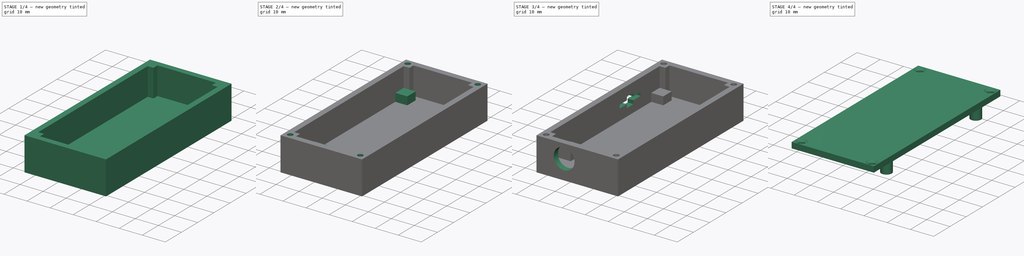
[diagram: build sequence overview — one tinted view per stage of 4, left to right]
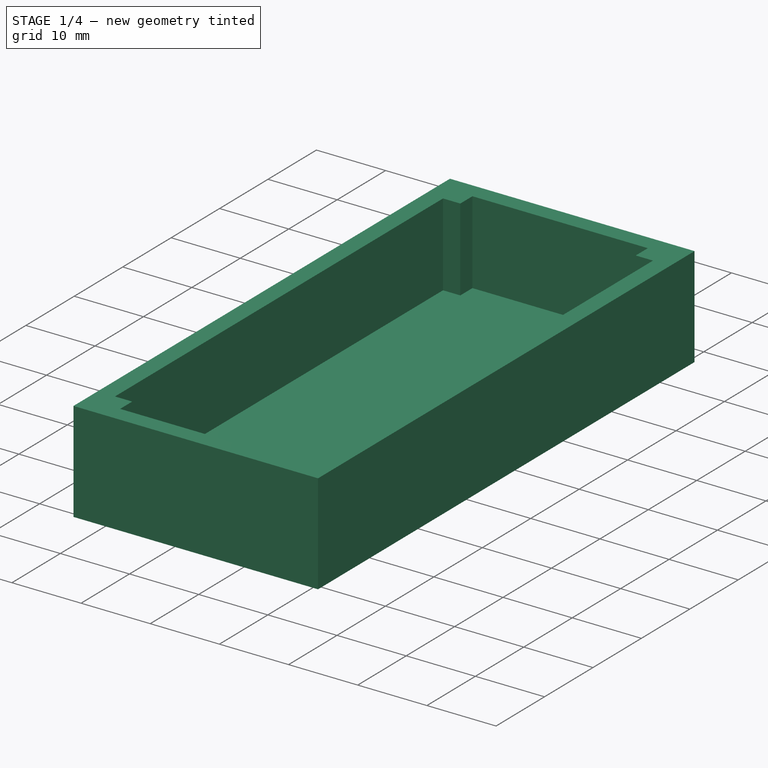
[diagram: stage 1 of 4 — iso view after this stage's code; geometry added in this stage tinted green]
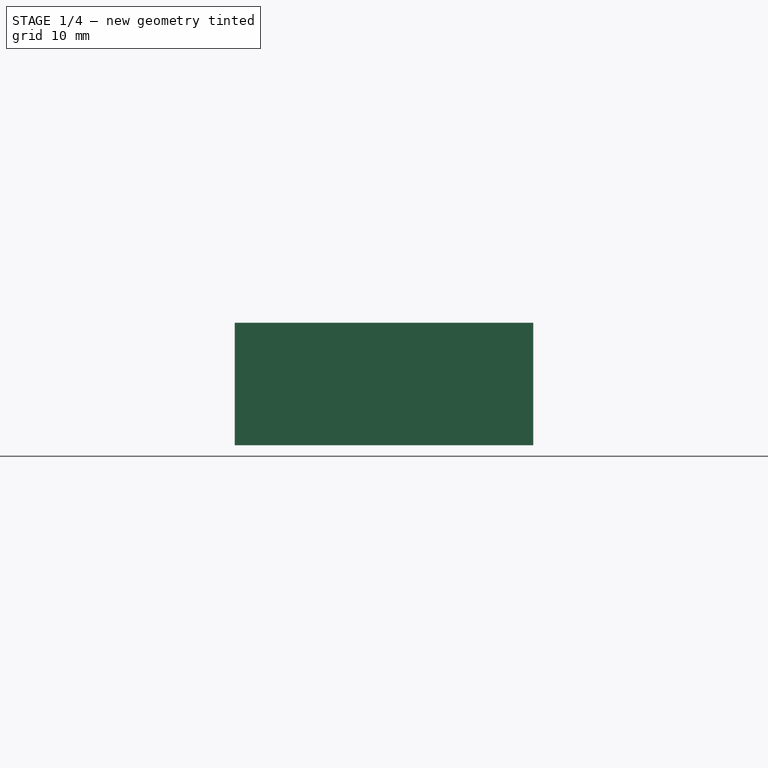
[diagram: stage 1 of 4 — front view after this stage's code; geometry added in this stage tinted green]
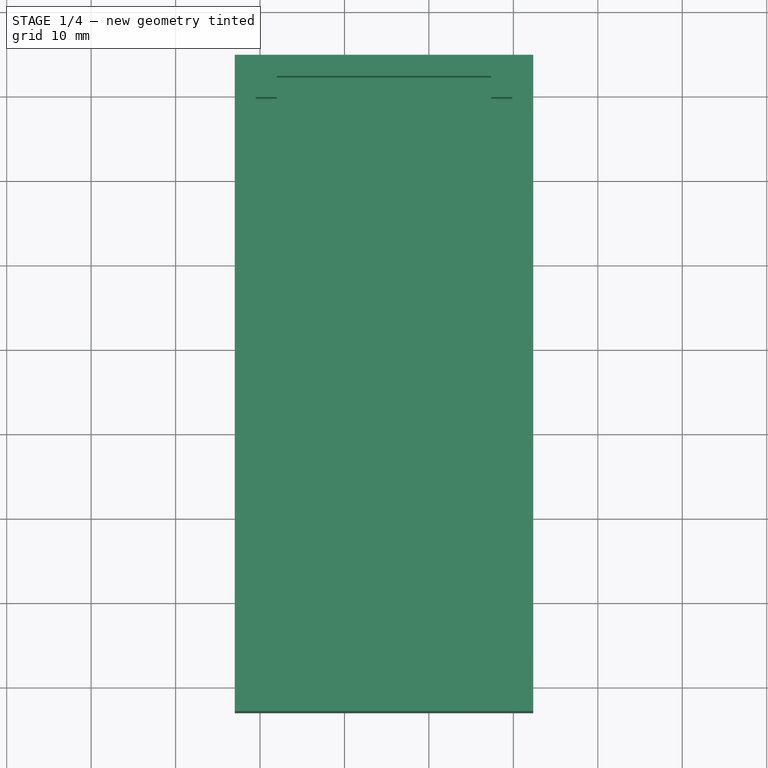
[diagram: stage 1 of 4 — top view after this stage's code; geometry added in this stage tinted green]
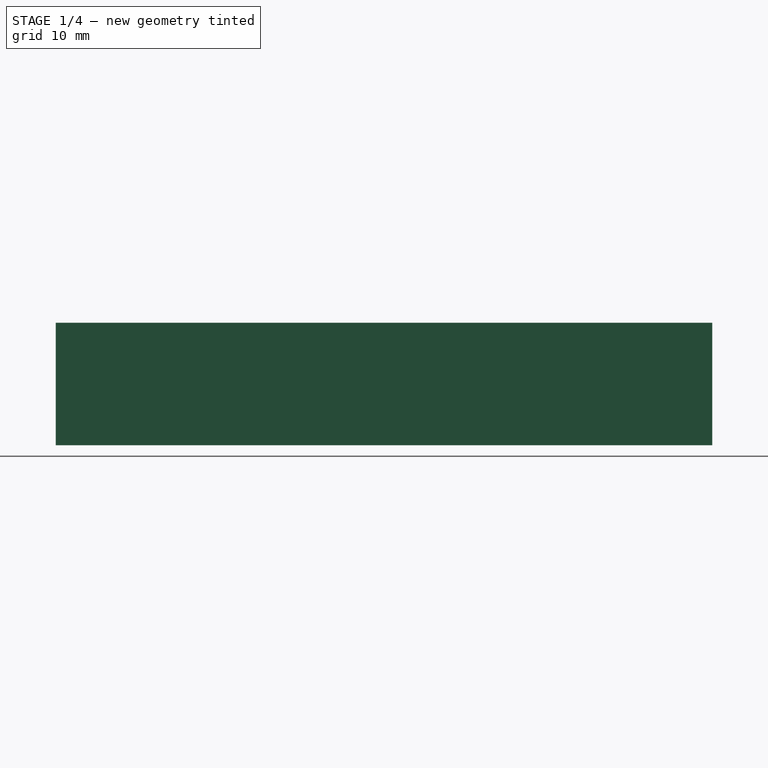
[diagram: stage 1 of 4 — right view after this stage's code; geometry added in this stage tinted green]
FCSTD DOCUMENT  (FreeCAD 0.19R24366 (Git))
Label: RemoteESP32_Enclosure_NoBat
License: All rights reserved
LicenseURL: http://en.wikipedia.org/wiki/All_rights_reserved
objects: PartDesign::Line×16, PartDesign::ShapeBinder×15, Sketcher::SketchObject×12, PartDesign::Plane×7, PartDesign::Pad×6, PartDesign::Pocket×4, PartDesign::Body×2, Part::Feature×1, PartDesign::Hole×1
note: 75 computed .brp shape members not serialized (recipe doc carries the construction recipe); baked Part::Feature solids carry a one-line shape summary decoded from their .brp

FEATURE [Part::Feature] Feature  label="RemoteESP32"
  shape: bbox 31.07 x 61.15 x 16.5 mm, 3429 faces, 53 solids (baked)
FEATURE [PartDesign::ShapeBinder] CopyFeature
  TraceSupport = false
FEATURE [PartDesign::Line] DatumLine  label="PCB Left"
  AttacherType = Attacher::AttachEngineLine
  Length = 20
  MapMode = 29
  Placement = pos=(29.3624,0,0) rot=(1,0,0;1.5708rad)
  ResizeMode = 0
  Support = -> [CopyFeature]
FEATURE [PartDesign::ShapeBinder] CopyFeature001
  TraceSupport = false
FEATURE [PartDesign::Line] DatumLine001  label="PCB Top"
  AttacherType = Attacher::AttachEngineLine
  Length = 20
  MapMode = 29
  Placement = pos=(0,59.2328,0) rot=(0.57735,0.57735,0.57735;2.0944rad)
  ResizeMode = 0
  Support = -> [CopyFeature001]
FEATURE [PartDesign::ShapeBinder] CopyFeature002
  TraceSupport = false
FEATURE [PartDesign::Line] DatumLine002  label="PCB Right"
  AttacherType = Attacher::AttachEngineLine
  Length = 20
  MapMode = 29
  Placement = pos=(0,0,0) rot=(0,0.707107,0.707107;3.14159rad)
  ResizeMode = 0
  Support = -> [CopyFeature002]
FEATURE [PartDesign::ShapeBinder] CopyFeature003
  TraceSupport = false
FEATURE [PartDesign::Line] DatumLine003  label="PCB Btm"
  AttacherType = Attacher::AttachEngineLine
  Length = 20
  MapMode = 29
  Placement = pos=(0,0,0) rot=(0.57735,-0.57735,-0.57735;2.0944rad)
  ResizeMode = 0
  Support = -> [CopyFeature003]
FEATURE [Sketcher::SketchObject] Sketch001  label="ScrewPillarsRef"
  ExternalGeometry = -> [DatumLine001,DatumLine,DatumLine002,DatumLine003]
  FullyConstrained = true
  MapMode = 5
  Support = -> [XY_Plane]
  sketch-geometry (16):
    g0: LineSegment StartX=-3 StartY=64.7328 StartZ=0 EndX=2 EndY=64.7328 EndZ=0
    g1: LineSegment StartX=2 StartY=64.7328 StartZ=0 EndX=2 EndY=59.7328 EndZ=0
    g2: LineSegment StartX=2 StartY=59.7328 StartZ=0 EndX=-3 EndY=59.7328 EndZ=0
    g3: LineSegment StartX=-3 StartY=59.7328 StartZ=0 EndX=-3 EndY=64.7328 EndZ=0
    g4: LineSegment StartX=27.3624 StartY=64.7328 StartZ=0 EndX=32.3624 EndY=64.7328 EndZ=0
    g5: LineSegment StartX=32.3624 StartY=64.7328 StartZ=0 EndX=32.3624 EndY=59.7328 EndZ=0
    g6: LineSegment StartX=32.3624 StartY=59.7328 StartZ=0 EndX=27.3624 EndY=59.7328 EndZ=0
    g7: LineSegment StartX=27.3624 StartY=59.7328 StartZ=0 EndX=27.3624 EndY=64.7328 EndZ=0
    g8: LineSegment StartX=2 StartY=-8 StartZ=0 EndX=-3 EndY=-8 EndZ=0
    g9: LineSegment StartX=-3 StartY=-8 StartZ=0 EndX=-3 EndY=-13 EndZ=0
    g10: LineSegment StartX=-3 StartY=-13 StartZ=0 EndX=2 EndY=-13 EndZ=0
    g11: LineSegment StartX=2 StartY=-13 StartZ=0 EndX=2 EndY=-8 EndZ=0
    g12: LineSegment StartX=27.3624 StartY=-8 StartZ=0 EndX=32.3624 EndY=-8 EndZ=0
    g13: LineSegment StartX=32.3624 StartY=-8 StartZ=0 EndX=32.3624 EndY=-13 EndZ=0
    g14: LineSegment StartX=32.3624 StartY=-13 StartZ=0 EndX=27.3624 EndY=-13 EndZ=0
    g15: LineSegment StartX=27.3624 StartY=-13 StartZ=0 EndX=27.3624 EndY=-8 EndZ=0
  constraints (48):
    c: Coincident(g0,g1)
    c: Coincident(g1,g2)
    c: Coincident(g2,g3)
    c: Coincident(g3,g0)
    c: Horizontal(g0)
    c: Horizontal(g2)
    c: Vertical(g1)
    c: Vertical(g3)
    c: Distance(g2,g-5) = 3
    c: DistanceY(g2,g0) = 5
    c: DistanceX(g0,g0) = 5
    c: Coincident(g4,g5)
    c: Coincident(g5,g6)
    c: Coincident(g6,g7)
    c: Coincident(g7,g4)
    c: Horizontal(g4)
    c: Horizontal(g6)
    c: Vertical(g5)
    c: Vertical(g7)
    c: Coincident(g8,g9)
    c: Coincident(g9,g10)
    c: Coincident(g10,g11)
    c: Coincident(g11,g8)
    c: Horizontal(g8)
    c: Horizontal(g10)
    c: Vertical(g9)
    c: Vertical(g11)
    c: Coincident(g12,g13)
    c: Coincident(g13,g14)
    c: Coincident(g14,g15)
    c: Coincident(g15,g12)
    c: Horizontal(g12)
    c: Horizontal(g14)
    c: Vertical(g13)
    c: Vertical(g15)
    c: Distance(g5,g-4) = 3
    c: Distance(g12,g-4) = 3
    c: Distance(g8,g-5) = 3
    c: DistanceY(g9,g8) = 5
    c: DistanceY(g13,g12) = 5
    c: DistanceY(g5,g4) = 5
    c: DistanceX(g4,g4) = 5
    c: DistanceX(g14,g13) = 5
    c: DistanceX(g9,g10) = 5
    c: Distance(g8,g-6) = 8
    c: Distance(g12,g-6) = 8
    c: Distance(g5,g-3) = 0.5
    c: Distance(g2,g-3) = 0.5
FEATURE [Sketcher::SketchObject] Sketch  label="Outline"
  ExternalGeometry = -> [Sketch001]
  FullyConstrained = true
  MapMode = 5
  Support = -> [XY_Plane]
  sketch-geometry (4):
    g0: LineSegment StartX=-3 StartY=64.7328 StartZ=0 EndX=32.3624 EndY=64.7328 EndZ=0
    g1: LineSegment StartX=32.3624 StartY=64.7328 StartZ=0 EndX=32.3624 EndY=-13 EndZ=0
    g2: LineSegment StartX=32.3624 StartY=-13 StartZ=0 EndX=-3 EndY=-13 EndZ=0
    g3: LineSegment StartX=-3 StartY=-13 StartZ=0 EndX=-3 EndY=64.7328 EndZ=0
  constraints (10):
    c: Coincident(g0,g1)
    c: Coincident(g1,g2)
    c: Coincident(g2,g3)
    c: Coincident(g3,g0)
    c: Horizontal(g0)
    c: Horizontal(g2)
    c: Vertical(g1)
    c: Vertical(g3)
    c: Coincident(g0,g-3)
    c: Coincident(g1,g-6)
FEATURE [PartDesign::Pad] Pad
  Direction = (1,1,1)
  Length = 8.5
  Length2 = 6
  Profile = -> Sketch
  Type = 4
FEATURE [Sketcher::SketchObject] Sketch002  label="MainPocket"
  ExternalGeometry = -> [Pad]
  FullyConstrained = true
  MapMode = 5
  Support = -> [XY_Plane]
  sketch-geometry (4):
    g0: LineSegment StartX=-0.5 StartY=62.2328 StartZ=0 EndX=29.8624 EndY=62.2328 EndZ=0
    g1: LineSegment StartX=29.8624 StartY=62.2328 StartZ=0 EndX=29.8624 EndY=-10.5 EndZ=0
    g2: LineSegment StartX=29.8624 StartY=-10.5 StartZ=0 EndX=-0.5 EndY=-10.5 EndZ=0
    g3: LineSegment StartX=-0.5 StartY=-10.5 StartZ=0 EndX=-0.5 EndY=62.2328 EndZ=0
  constraints (12):
    c: Coincident(g0,g1)
    c: Coincident(g1,g2)
    c: Coincident(g2,g3)
    c: Coincident(g3,g0)
    c: Horizontal(g0)
    c: Horizontal(g2)
    c: Vertical(g1)
    c: Vertical(g3)
    c: Distance(g0,g-3) = 2.5
    c: Distance(g0,g-5) = 2.5
    c: Distance(g1,g-4) = 2.5
    c: Distance(g1,g-6) = 2.5
FEATURE [PartDesign::Pocket] Pocket
  BaseFeature = -> Pad
  Length = 3.5
  Length2 = 8.5
  Profile = -> Sketch002
  Type = 4
FEATURE [Sketcher::SketchObject] Sketch003  label="ScrewPillarsPad"
  ExternalGeometry = -> [Sketch001]
  FullyConstrained = true
  MapMode = 5
  Support = -> [XY_Plane]
  sketch-geometry (16):
    g0: LineSegment StartX=27.3624 StartY=-8 StartZ=0 EndX=32.3624 EndY=-8 EndZ=0
    g1: LineSegment StartX=32.3624 StartY=-8 StartZ=0 EndX=32.3624 EndY=-13 EndZ=0
    g2: LineSegment StartX=32.3624 StartY=-13 StartZ=0 EndX=27.3624 EndY=-13 EndZ=0
    g3: LineSegment StartX=27.3624 StartY=-13 StartZ=0 EndX=27.3624 EndY=-8 EndZ=0
    g4: LineSegment StartX=-3 StartY=-8 StartZ=0 EndX=2 EndY=-8 EndZ=0
    g5: LineSegment StartX=2 StartY=-8 StartZ=0 EndX=2 EndY=-13 EndZ=0
    g6: LineSegment StartX=2 StartY=-13 StartZ=0 EndX=-3 EndY=-13 EndZ=0
    g7: LineSegment StartX=-3 StartY=-13 StartZ=0 EndX=-3 EndY=-8 EndZ=0
    g8: LineSegment StartX=-3 StartY=64.7328 StartZ=0 EndX=2 EndY=64.7328 EndZ=0
    g9: LineSegment StartX=2 StartY=64.7328 StartZ=0 EndX=2 EndY=59.7328 EndZ=0
    g10: LineSegment StartX=2 StartY=59.7328 StartZ=0 EndX=-3 EndY=59.7328 EndZ=0
    g11: LineSegment StartX=-3 StartY=59.7328 StartZ=0 EndX=-3 EndY=64.7328 EndZ=0
    g12: LineSegment StartX=27.3624 StartY=64.7328 StartZ=0 EndX=32.3624 EndY=64.7328 EndZ=0
    g13: LineSegment StartX=32.3624 StartY=64.7328 StartZ=0 EndX=32.3624 EndY=59.7328 EndZ=0
    g14: LineSegment StartX=32.3624 StartY=59.7328 StartZ=0 EndX=27.3624 EndY=59.7328 EndZ=0
    g15: LineSegment StartX=27.3624 StartY=59.7328 StartZ=0 EndX=27.3624 EndY=64.7328 EndZ=0
  constraints (40):
    c: Coincident(g0,g1)
    c: Coincident(g1,g2)
    c: Coincident(g2,g3)
    c: Coincident(g3,g0)
    c: Horizontal(g0)
    c: Horizontal(g2)
    c: Vertical(g1)
    c: Vertical(g3)
    c: Coincident(g0,g-9)
    c: Coincident(g1,g-10)
    c: Coincident(g4,g5)
    c: Coincident(g5,g6)
    c: Coincident(g6,g7)
    c: Coincident(g7,g4)
    c: Horizontal(g4)
    c: Horizontal(g6)
    c: Vertical(g5)
    c: Vertical(g7)
    c: Coincident(g4,g-7)
    c: Coincident(g5,g-8)
    c: Coincident(g8,g9)
    c: Coincident(g9,g10)
    c: Coincident(g10,g11)
    c: Coincident(g11,g8)
    c: Horizontal(g8)
    c: Horizontal(g10)
    c: Vertical(g9)
    c: Vertical(g11)
    c: Coincident(g8,g-3)
    c: Coincident(g9,g-4)
    c: Coincident(g12,g13)
    c: Coincident(g13,g14)
    c: Coincident(g14,g15)
    c: Coincident(g15,g12)
    c: Horizontal(g12)
    c: Horizontal(g14)
    c: Vertical(g13)
    c: Vertical(g15)
    c: Coincident(g12,g-5)
    c: Coincident(g13,g-6)
FEATURE [PartDesign::Pad] Pad001
  BaseFeature = -> Pocket
  Direction = (1,1,1)
  Length = 8.5
  Length2 = 3.5
  Profile = -> Sketch003
  Type = 4
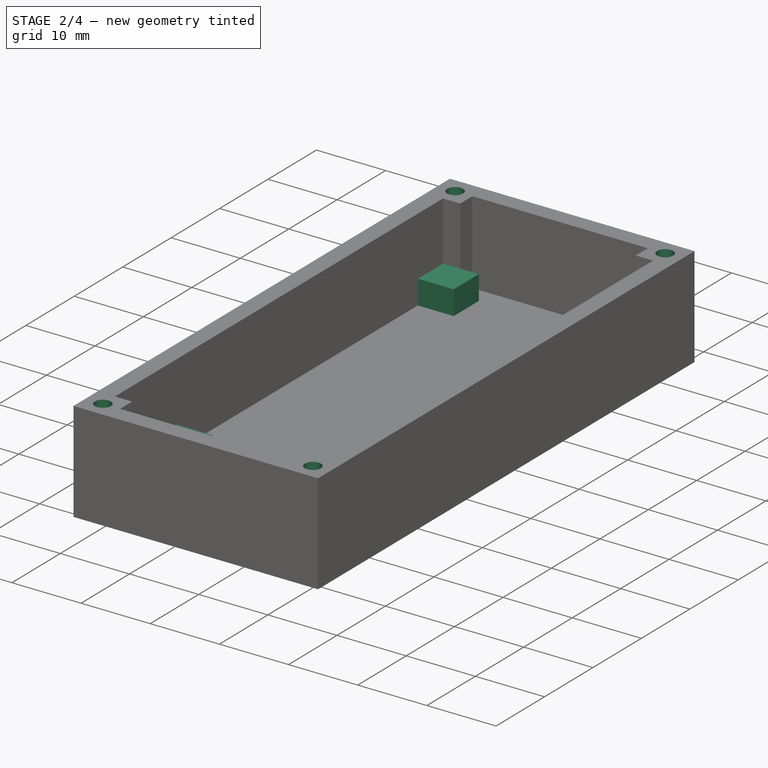
[diagram: stage 2 of 4 — iso view after this stage's code; geometry added in this stage tinted green]
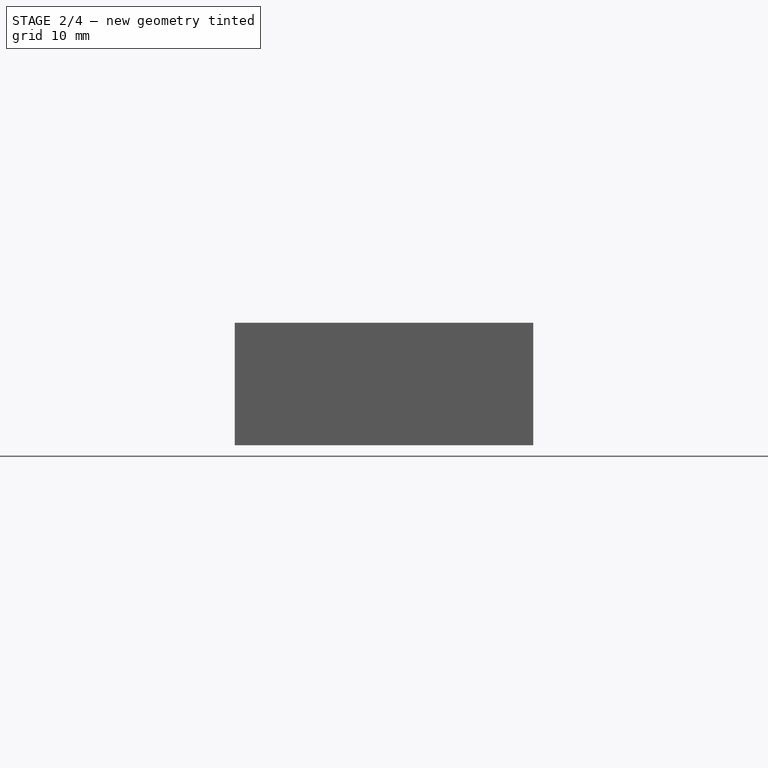
[diagram: stage 2 of 4 — front view after this stage's code; geometry added in this stage tinted green]
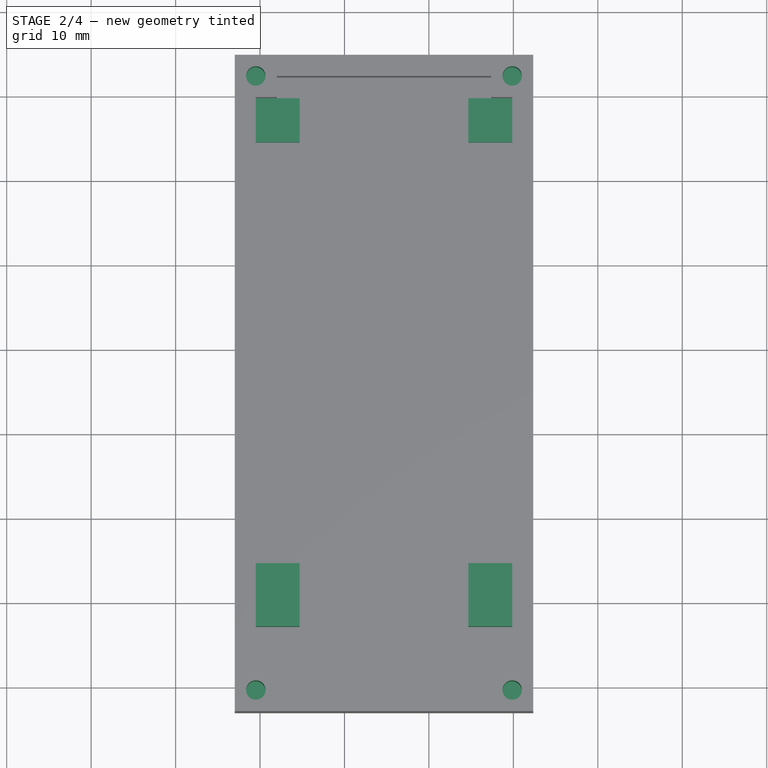
[diagram: stage 2 of 4 — top view after this stage's code; geometry added in this stage tinted green]
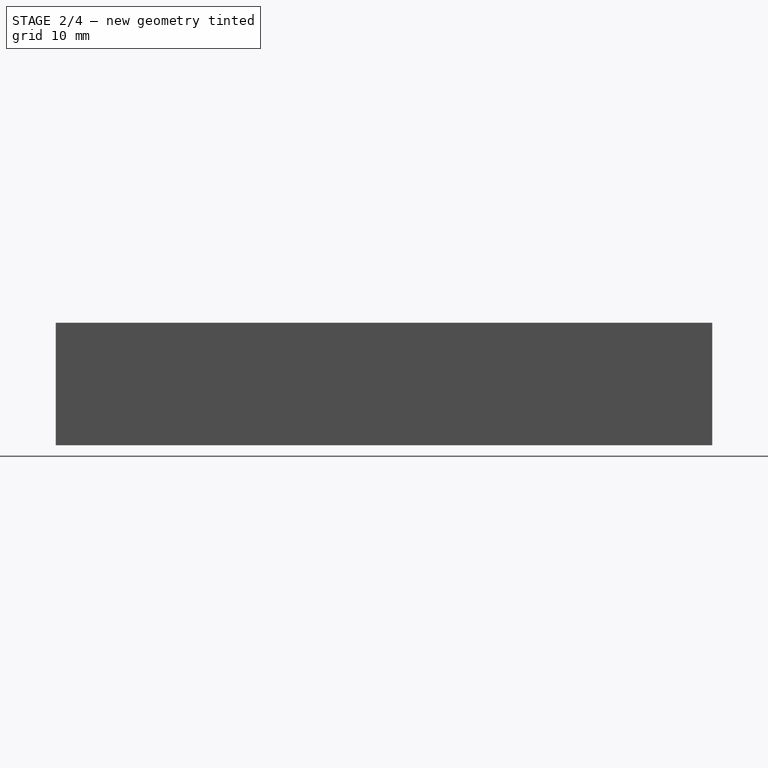
[diagram: stage 2 of 4 — right view after this stage's code; geometry added in this stage tinted green]
FEATURE [PartDesign::ShapeBinder] CopyFeature004
  TraceSupport = false
FEATURE [PartDesign::Line] DatumLine004  label="PCB_HoleTL"
  AttacherType = Attacher::AttachEngineLine
  Length = 20
  MapMode = 19
  Placement = pos=(2.1844,57.038,1.6) rot=(0,0,1;0rad)
  ResizeMode = 0
  Support = -> [CopyFeature004]
FEATURE [PartDesign::ShapeBinder] CopyFeature005
  TraceSupport = false
FEATURE [PartDesign::Line] DatumLine005  label="PCB_HoleTR"
  AttacherType = Attacher::AttachEngineLine
  Length = 20
  MapMode = 19
  Placement = pos=(27.178,57.038,1.6) rot=(0,0,1;0rad)
  ResizeMode = 0
  Support = -> [CopyFeature005]
FEATURE [PartDesign::ShapeBinder] CopyFeature006
  TraceSupport = false
FEATURE [PartDesign::Line] DatumLine006  label="PCB_HoleBL"
  AttacherType = Attacher::AttachEngineLine
  Length = 20
  MapMode = 19
  Placement = pos=(2.1844,2.174,1.6) rot=(0,0,1;0rad)
  ResizeMode = 0
  Support = -> [CopyFeature006]
FEATURE [PartDesign::ShapeBinder] CopyFeature007
  TraceSupport = false
FEATURE [PartDesign::Line] DatumLine007  label="PCB_HoleBR"
  AttacherType = Attacher::AttachEngineLine
  Length = 20
  MapMode = 19
  Placement = pos=(27.178,2.174,1.6) rot=(0,0,1;0rad)
  ResizeMode = 0
  Support = -> [CopyFeature007]
FEATURE [Sketcher::SketchObject] Sketch004  label="PCB_Supports"
  ExternalGeometry = -> [Pad001,DatumLine007,DatumLine006,DatumLine005,DatumLine004]
  FullyConstrained = true
  MapMode = 5
  Support = -> [XY_Plane]
  sketch-geometry (16):
    g0: LineSegment StartX=-0.5 StartY=59.7328 StartZ=0 EndX=4.6844 EndY=59.7328 EndZ=0
    g1: LineSegment StartX=4.6844 StartY=59.7328 StartZ=0 EndX=4.6844 EndY=54.538 EndZ=0
    g2: LineSegment StartX=4.6844 StartY=54.538 StartZ=0 EndX=-0.5 EndY=54.538 EndZ=0
    g3: LineSegment StartX=-0.5 StartY=54.538 StartZ=0 EndX=-0.5 EndY=59.7328 EndZ=0
    g4: LineSegment StartX=29.8624 StartY=59.7328 StartZ=0 EndX=24.678 EndY=59.7328 EndZ=0
    g5: LineSegment StartX=24.678 StartY=59.7328 StartZ=0 EndX=24.678 EndY=54.538 EndZ=0
    g6: LineSegment StartX=24.678 StartY=54.538 StartZ=0 EndX=29.8624 EndY=54.538 EndZ=0
    g7: LineSegment StartX=29.8624 StartY=54.538 StartZ=0 EndX=29.8624 EndY=59.7328 EndZ=0
    g8: LineSegment StartX=-0.5 StartY=-0.326 StartZ=0 EndX=4.6844 EndY=-0.326 EndZ=0
    g9: LineSegment StartX=4.6844 StartY=-0.326 StartZ=0 EndX=4.6844 EndY=4.674 EndZ=0
    g10: LineSegment StartX=4.6844 StartY=4.674 StartZ=0 EndX=-0.5 EndY=4.674 EndZ=0
    g11: LineSegment StartX=-0.5 StartY=4.674 StartZ=0 EndX=-0.5 EndY=-0.326 EndZ=0
    g12: LineSegment StartX=24.678 StartY=-0.326 StartZ=0 EndX=29.8624 EndY=-0.326 EndZ=0
    g13: LineSegment StartX=29.8624 StartY=-0.326 StartZ=0 EndX=29.8624 EndY=4.674 EndZ=0
    g14: LineSegment StartX=29.8624 StartY=4.674 StartZ=0 EndX=24.678 EndY=4.674 EndZ=0
    g15: LineSegment StartX=24.678 StartY=4.674 StartZ=0 EndX=24.678 EndY=-0.326 EndZ=0
  constraints (46):
    c: Coincident(g0,g1)
    c: Coincident(g1,g2)
    c: Coincident(g2,g3)
    c: Coincident(g3,g0)
    c: Horizontal(g0)
    c: Horizontal(g2)
    c: Vertical(g1)
    c: Vertical(g3)
    c: Coincident(g0,g-3)
    c: Coincident(g4,g5)
    c: Coincident(g5,g6)
    c: Coincident(g6,g7)
    c: Coincident(g7,g4)
    c: Horizontal(g4)
    c: Horizontal(g6)
    c: Vertical(g5)
    c: Vertical(g7)
    c: Coincident(g4,g-4)
    c: Coincident(g8,g9)
    c: Coincident(g9,g10)
    c: Coincident(g10,g11)
    c: Coincident(g11,g8)
    c: Horizontal(g8)
    c: Horizontal(g10)
    c: Vertical(g9)
    c: Vertical(g11)
    c: Coincident(g12,g13)
    c: Coincident(g13,g14)
    c: Coincident(g14,g15)
    c: Coincident(g15,g12)
    c: Horizontal(g12)
    c: Horizontal(g14)
    c: Vertical(g13)
    c: Vertical(g15)
    c: Distance(g-8,g2) = 2.5
    c: Distance(g-8,g1) = 2.5
    c: Distance(g-7,g6) = 2.5
    c: Distance(g-7,g5) = 2.5
    c: Distance(g-6,g10) = 2.5
    c: Distance(g-6,g9) = 2.5
    c: Distance(g-6,g8) = 2.5
    c: Distance(g-5,g14) = 2.5
    c: Distance(g-5,g15) = 2.5
    c: Distance(g-5,g12) = 2.5
    c: PointOnObject(g13,g-10)
    c: PointOnObject(g10,g-9)
FEATURE [PartDesign::Pad] Pad002
  BaseFeature = -> Pad001
  Direction = (1,1,1)
  Length = 3.5
  Length2 = 100
  Profile = -> Sketch004
  Reversed = true
  Type = 0
FEATURE [Sketcher::SketchObject] Sketch005  label="PCB_Retainers"
  ExternalGeometry = -> [Pad002]
  FullyConstrained = true
  MapMode = 5
  Support = -> [XY_Plane]
  sketch-geometry (8):
    g0: LineSegment StartX=24.678 StartY=-0.326 StartZ=0 EndX=29.8624 EndY=-0.326 EndZ=0
    g1: LineSegment StartX=29.8624 StartY=-0.326 StartZ=0 EndX=29.8624 EndY=-2.826 EndZ=0
    g2: LineSegment StartX=29.8624 StartY=-2.826 StartZ=0 EndX=24.678 EndY=-2.826 EndZ=0
    g3: LineSegment StartX=24.678 StartY=-2.826 StartZ=0 EndX=24.678 EndY=-0.326 EndZ=0
    g4: LineSegment StartX=4.6844 StartY=-0.326 StartZ=0 EndX=-0.5 EndY=-0.326 EndZ=0
    g5: LineSegment StartX=-0.5 StartY=-0.326 StartZ=0 EndX=-0.5 EndY=-2.826 EndZ=0
    g6: LineSegment StartX=-0.5 StartY=-2.826 StartZ=0 EndX=4.6844 EndY=-2.826 EndZ=0
    g7: LineSegment StartX=4.6844 StartY=-2.826 StartZ=0 EndX=4.6844 EndY=-0.326 EndZ=0
  constraints (22):
    c: Coincident(g0,g1)
    c: Coincident(g1,g2)
    c: Coincident(g2,g3)
    c: Coincident(g3,g0)
    c: Horizontal(g0)
    c: Horizontal(g2)
    c: Vertical(g1)
    c: Vertical(g3)
    c: Coincident(g0,g-4)
    c: PointOnObject(g1,g-6)
    c: Coincident(g4,g5)
    c: Coincident(g5,g6)
    c: Coincident(g6,g7)
    c: Coincident(g7,g4)
    c: Horizontal(g4)
    c: Horizontal(g6)
    c: Vertical(g5)
    c: Vertical(g7)
    c: Coincident(g4,g-3)
    c: PointOnObject(g5,g-5)
    c: DistanceY(g6,g4) = 2.5
    c: DistanceY(g2,g0) = 2.5
FEATURE [PartDesign::Pad] Pad003
  BaseFeature = -> Pad002
  Direction = (1,1,1)
  Length = 1.6
  Length2 = 3.5
  Profile = -> Sketch005
  Type = 4
FEATURE [PartDesign::Plane] DatumPlane  label="LidPlane"
  Length = 71.7113
  MapMode = 5
  Placement = pos=(0,0,8.5) rot=(0,0,1;0rad)
  ResizeMode = 0
  Support = -> [Pad003]
  Width = 104.082
FEATURE [Sketcher::SketchObject] Sketch006  label="ScrewHoles"
  ExternalGeometry = -> [Pad003]
  FullyConstrained = true
  MapMode = 5
  Placement = pos=(0,0,8.5) rot=(0,0,1;0rad)
  Support = -> [DatumPlane]
  sketch-geometry (4):
    g0: Circle CenterX=29.8624 CenterY=-10.5 CenterZ=0 NormalX=0 NormalY=0 NormalZ=1 AngleXU=0 Radius=1.15
    g1: Circle CenterX=-0.5 CenterY=-10.5 CenterZ=0 NormalX=0 NormalY=0 NormalZ=1 AngleXU=0 Radius=1.15
    g2: Circle CenterX=29.8624 CenterY=62.2328 CenterZ=0 NormalX=0 NormalY=0 NormalZ=1 AngleXU=0 Radius=1.15
    g3: Circle CenterX=-0.5 CenterY=62.2328 CenterZ=0 NormalX=0 NormalY=0 NormalZ=1 AngleXU=0 Radius=1.15
  constraints (8):
    c: Symmetric(g-3,g-4,g3)
    c: Symmetric(g-5,g-6,g2)
    c: Symmetric(g-7,g-8,g0)
    c: Symmetric(g-10,g-9,g1)
    c: Radius(g1) = 1.15
    c: Radius(g0) = 1.15
    c: Radius(g2) = 1.15
    c: Radius(g3) = 1.15
FEATURE [PartDesign::Pocket] Pocket001
  BaseFeature = -> Pad003
  Length = 8
  Length2 = 100
  Profile = -> Sketch006
  Type = 0
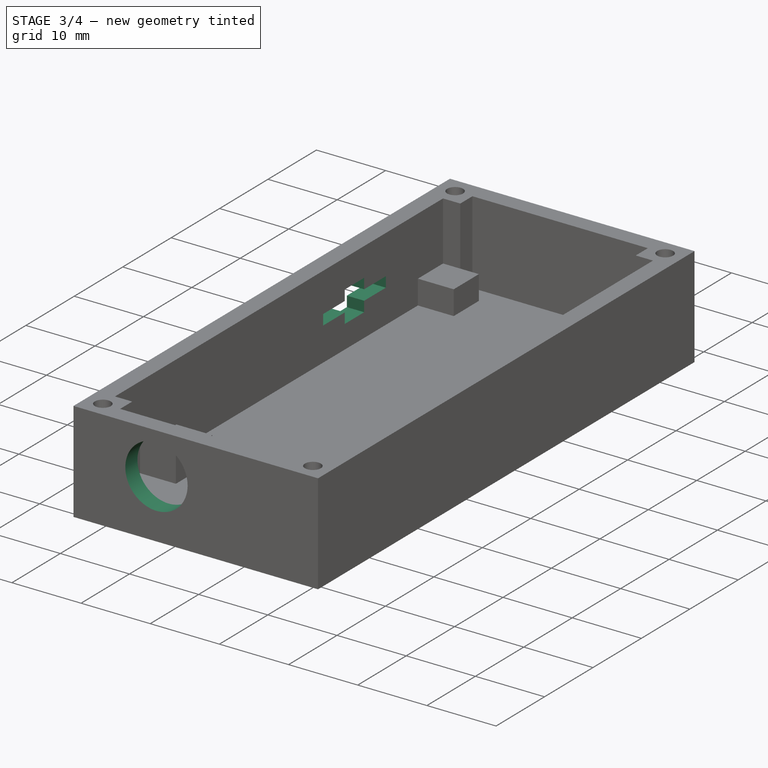
[diagram: stage 3 of 4 — iso view after this stage's code; geometry added in this stage tinted green]
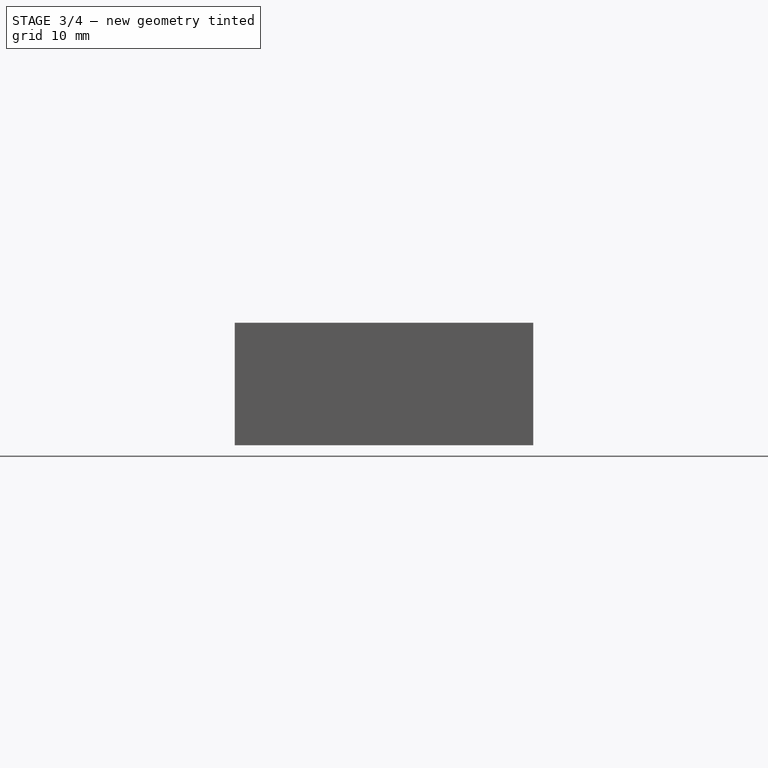
[diagram: stage 3 of 4 — front view after this stage's code; geometry added in this stage tinted green]
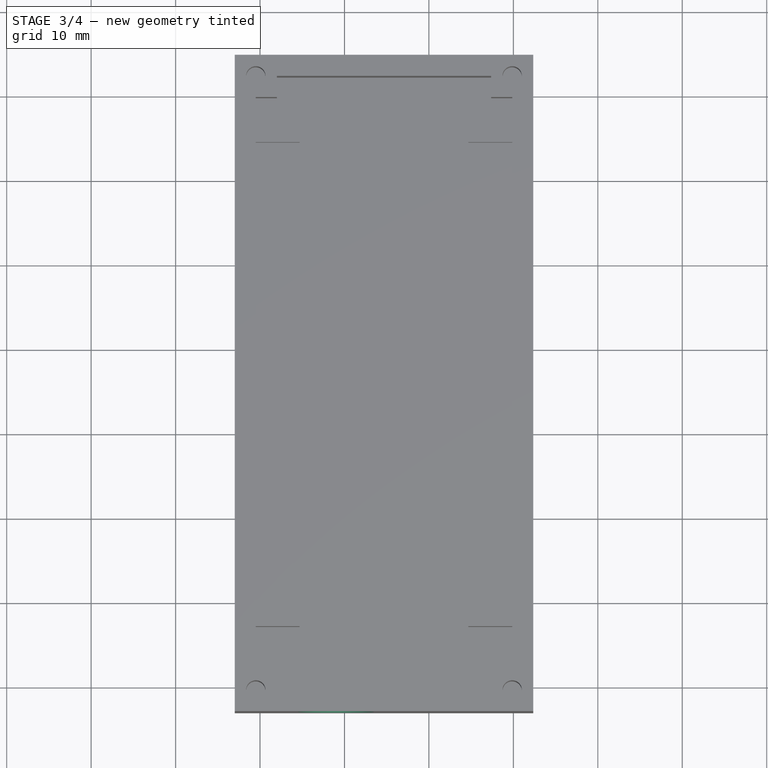
[diagram: stage 3 of 4 — top view after this stage's code; geometry added in this stage tinted green]
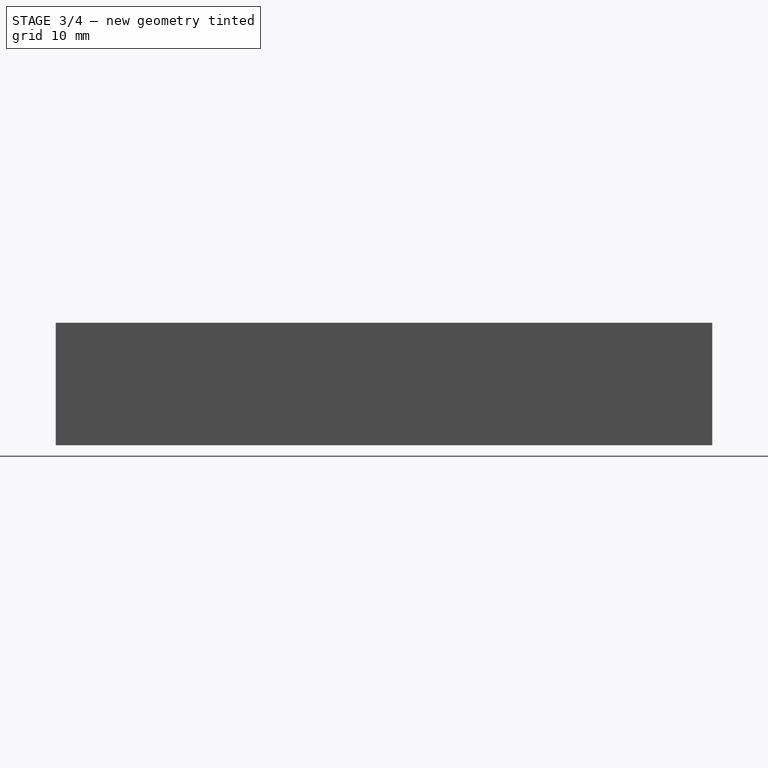
[diagram: stage 3 of 4 — right view after this stage's code; geometry added in this stage tinted green]
FEATURE [PartDesign::Plane] DatumPlane001  label="CableEnd"
  Length = 68.0734
  MapMode = 5
  Placement = pos=(0,-13,0) rot=(1,0,0;1.5708rad)
  ResizeMode = 0
  Support = -> [Pocket001]
  Width = 60.711
FEATURE [Sketcher::SketchObject] Sketch007
  ExternalGeometry = -> [Pocket001]
  FullyConstrained = true
  MapMode = 5
  Placement = pos=(0,-13,0) rot=(1,0,0;1.5708rad)
  Support = -> [DatumPlane001]
  sketch-geometry (2):
    g0: LineSegment StartX=9 StartY=8.5 StartZ=0 EndX=9 EndY=-3.5 EndZ=0
    g1: Circle CenterX=9 CenterY=2.5 CenterZ=0 NormalX=0 NormalY=0 NormalZ=1 AngleXU=0 Radius=4.5
  constraints (6):
    c: Vertical(g0)
    c: Equal(g-3,g0)
    c: PointOnObject(g0,g-4)
    c: Distance(g0,g-3) = 12
    c: Symmetric(g0,g0,g1)
    c: Radius(g1) = 4.5
FEATURE [PartDesign::Pocket] Pocket002
  BaseFeature = -> Pocket001
  Length = 2.5
  Length2 = 100
  Profile = -> Sketch007
  Type = 0
FEATURE [PartDesign::ShapeBinder] CopyFeature008
  Placement = pos=(8.3312,41.4528,1.65) rot=(0,0,-1;1.5708rad)
  TraceSupport = false
FEATURE [PartDesign::Plane] DatumPlane002  label="SD_Edge1"
  Length = 60.9549
  MapMode = 45
  Placement = pos=(7.40243,35.4778,2.30636) rot=(0.575971,0.578039,0.578039;4.18672rad)
  ResizeMode = 0
  Support = -> [CopyFeature008]
  Width = 68.2909
FEATURE [PartDesign::ShapeBinder] CopyFeature009
  Placement = pos=(8.3312,41.4528,1.65) rot=(0,0,-1;1.5708rad)
  TraceSupport = false
FEATURE [PartDesign::Plane] DatumPlane003  label="SD_Edge2"
  Length = 61.3002
  MapMode = 45
  Placement = pos=(6.99152,47.4278,2.42549) rot=(0.574011,0.579013,0.579013;4.18377rad)
  ResizeMode = 0
  Support = -> [CopyFeature009]
  Width = 68.5984
FEATURE [PartDesign::Plane] DatumPlane004  label="Card_Hole"
  Length = 103.129
  MapMode = 5
  Placement = pos=(-3,0,0) rot=(0.57735,-0.57735,-0.57735;2.0944rad)
  ResizeMode = 0
  Support = -> [Pocket002]
  Width = 63.3965
FEATURE [Sketcher::SketchObject] Sketch008
  ExternalGeometry = -> [DatumPlane003,DatumPlane002]
  FullyConstrained = true
  MapMode = 5
  Placement = pos=(-3,0,0) rot=(0.57735,-0.57735,-0.57735;2.0944rad)
  Support = -> [DatumPlane004]
  sketch-geometry (32):
    g0: LineSegment StartX=-47.9278 StartY=2.85 StartZ=0 EndX=-34.9778 EndY=2.85 EndZ=0
    g1: LineSegment StartX=-34.9778 StartY=2.85 StartZ=0 EndX=-34.9778 EndY=1.35 EndZ=0
    g2: LineSegment StartX=-34.9778 StartY=1.35 StartZ=0 EndX=-47.9278 EndY=1.35 EndZ=0
    g3: LineSegment StartX=-47.9278 StartY=1.35 StartZ=0 EndX=-47.9278 EndY=2.85 EndZ=0
    g4: LineSegment StartX=-43.4528 StartY=4.35 StartZ=0 EndX=-41.4528 EndY=4.35 EndZ=0
    g5: LineSegment StartX=-41.4528 StartY=4.35 StartZ=0 EndX=-41.4528 EndY=2.85 EndZ=0
    g6: LineSegment StartX=-41.4528 StartY=2.85 StartZ=0 EndX=-43.4528 EndY=2.85 EndZ=0
    g7: LineSegment StartX=-43.4528 StartY=2.85 StartZ=0 EndX=-43.4528 EndY=4.35 EndZ=0
    g8: LineSegment StartX=-41.4528 StartY=4.35 StartZ=0 EndX=-39.4528 EndY=4.35 EndZ=0
    g9: LineSegment StartX=-39.4528 StartY=4.35 StartZ=0 EndX=-39.4528 EndY=2.85 EndZ=0
    g10: LineSegment StartX=-39.4528 StartY=2.85 StartZ=0 EndX=-41.4528 EndY=2.85 EndZ=0
    g11: LineSegment StartX=-41.4528 StartY=2.85 StartZ=0 EndX=-41.4528 EndY=4.35 EndZ=0
    g12: LineSegment StartX=-41.4528 StartY=1.35 StartZ=0 EndX=-43.4528 EndY=1.35 EndZ=0
    g13: LineSegment StartX=-43.4528 StartY=1.35 StartZ=0 EndX=-43.4528 EndY=-0.15 EndZ=0
    g14: LineSegment StartX=-43.4528 StartY=-0.15 StartZ=0 EndX=-41.4528 EndY=-0.15 EndZ=0
    g15: LineSegment StartX=-41.4528 StartY=-0.15 StartZ=0 EndX=-41.4528 EndY=1.35 EndZ=0
    g16: LineSegment StartX=-41.4528 StartY=1.35 StartZ=0 EndX=-39.4528 EndY=1.35 EndZ=0
    g17: LineSegment StartX=-39.4528 StartY=1.35 StartZ=0 EndX=-39.4528 EndY=-0.15 EndZ=0
    g18: LineSegment StartX=-39.4528 StartY=-0.15 StartZ=0 EndX=-41.4528 EndY=-0.15 EndZ=0
    g19: LineSegment StartX=-41.4528 StartY=-0.15 StartZ=0 EndX=-41.4528 EndY=1.35 EndZ=0
    g20: LineSegment StartX=-47.9278 StartY=2.85 StartZ=0 EndX=-43.4528 EndY=2.85 EndZ=0
    g21: LineSegment StartX=-43.4528 StartY=2.85 StartZ=0 EndX=-43.4528 EndY=4.35 EndZ=0
    g22: LineSegment StartX=-43.4528 StartY=4.35 StartZ=0 EndX=-39.4528 EndY=4.35 EndZ=0
    g23: LineSegment StartX=-39.4528 StartY=4.35 StartZ=0 EndX=-39.4528 EndY=2.85 EndZ=0
    g24: LineSegment StartX=-39.4528 StartY=2.85 StartZ=0 EndX=-34.9778 EndY=2.85 EndZ=0
    g25: LineSegment StartX=-34.9778 StartY=2.85 StartZ=0 EndX=-34.9778 EndY=1.35 EndZ=0
    g26: LineSegment StartX=-34.9778 StartY=1.35 StartZ=0 EndX=-39.4528 EndY=1.35 EndZ=0
    g27: LineSegment StartX=-39.4528 StartY=1.35 StartZ=0 EndX=-39.4528 EndY=-0.15 EndZ=0
    g28: LineSegment StartX=-39.4528 StartY=-0.15 StartZ=0 EndX=-43.4528 EndY=-0.15 EndZ=0
    g29: LineSegment StartX=-43.4528 StartY=-0.15 StartZ=0 EndX=-43.4528 EndY=1.35 EndZ=0
    g30: LineSegment StartX=-43.4528 StartY=1.35 StartZ=0 EndX=-47.9278 EndY=1.35 EndZ=0
    g31: LineSegment StartX=-47.9278 StartY=1.35 StartZ=0 EndX=-47.9278 EndY=2.85 EndZ=0
  constraints (80):
    c: Coincident(g0,g1)
    c: Coincident(g1,g2)
    c: Coincident(g2,g3)
    c: Coincident(g3,g0)
    c: Horizontal(g0)
    c: Horizontal(g2)
    c: Vertical(g1)
    c: Vertical(g3)
    c: Distance(g0,g-3) = 0.5
    c: Distance(g0,g-4) = 0.5
    c: Distance(g2,g-1) = 1.35
    c: DistanceY(g1,g0) = 1.5
    c: Coincident(g4,g5)
    c: Coincident(g5,g6)
    c: Coincident(g6,g7)
    c: Coincident(g7,g4)
    c: Horizontal(g4)
    c: Horizontal(g6)
    c: Vertical(g5)
    c: Vertical(g7)
    c: Coincident(g8,g9)
    c: Coincident(g9,g10)
    c: Coincident(g10,g11)
    c: Coincident(g11,g8)
    c: Horizontal(g8)
    c: Horizontal(g10)
    c: Vertical(g9)
    c: Vertical(g11)
    c: Coincident(g12,g13)
    c: Coincident(g13,g14)
    c: Coincident(g14,g15)
    c: Coincident(g15,g12)
    c: Horizontal(g12)
    c: Horizontal(g14)
    c: Vertical(g13)
    c: Vertical(g15)
    c: Coincident(g16,g17)
    c: Coincident(g17,g18)
    c: Coincident(g18,g19)
    c: Coincident(g19,g16)
    c: Horizontal(g16)
    c: Horizontal(g18)
    c: Vertical(g17)
    c: Vertical(g19)
    c: Symmetric(g0,g0,g5)
    c: Symmetric(g2,g1,g12)
    c: Coincident(g10,g5)
    c: Coincident(g16,g12)
    c: Equal(g7,g9)
    c: Equal(g13,g17)
    c: DistanceY(g9,g8) = 1.5
    c: DistanceY(g17,g16) = 1.5
    c: Distance(g13,g15) = 2
    c: Distance(g17,g15) = 2
    c: Distance(g8,g5) = 2
    c: Distance(g4,g5) = 2
    c: Coincident(g0,g20)
    c: Coincident(g20,g6)
    c: Coincident(g20,g21)
    c: Coincident(g21,g4)
    c: Coincident(g21,g22)
    c: Coincident(g22,g8)
    c: Coincident(g22,g23)
    c: Coincident(g23,g9)
    c: Coincident(g23,g24)
    c: Coincident(g24,g0)
    c: Coincident(g24,g25)
    c: Coincident(g25,g1)
    c: Coincident(g25,g26)
    c: Coincident(g26,g16)
    c: Coincident(g26,g27)
    c: Coincident(g27,g17)
    c: Coincident(g27,g28)
    c: Coincident(g28,g13)
    c: Coincident(g28,g29)
    c: Coincident(g29,g12)
    c: Coincident(g29,g30)
    c: Coincident(g30,g2)
    c: Coincident(g30,g31)
    c: Coincident(g31,g20)
FEATURE [PartDesign::Pocket] Pocket003
  BaseFeature = -> Pocket002
  Length = 2.5
  Length2 = 100
  Profile = -> Sketch008
  Type = 0
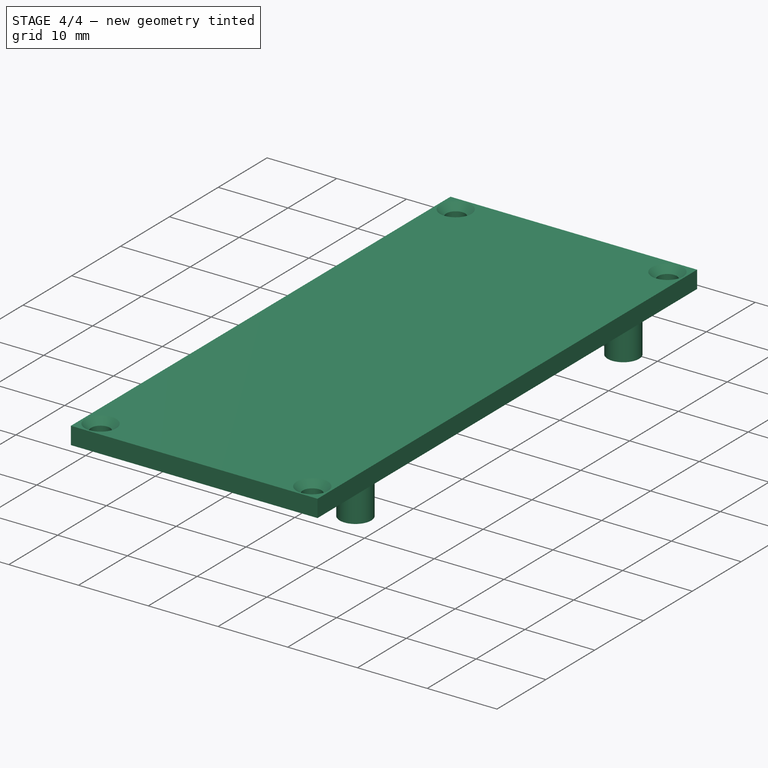
[diagram: stage 4 of 4 — iso view after this stage's code; geometry added in this stage tinted green]
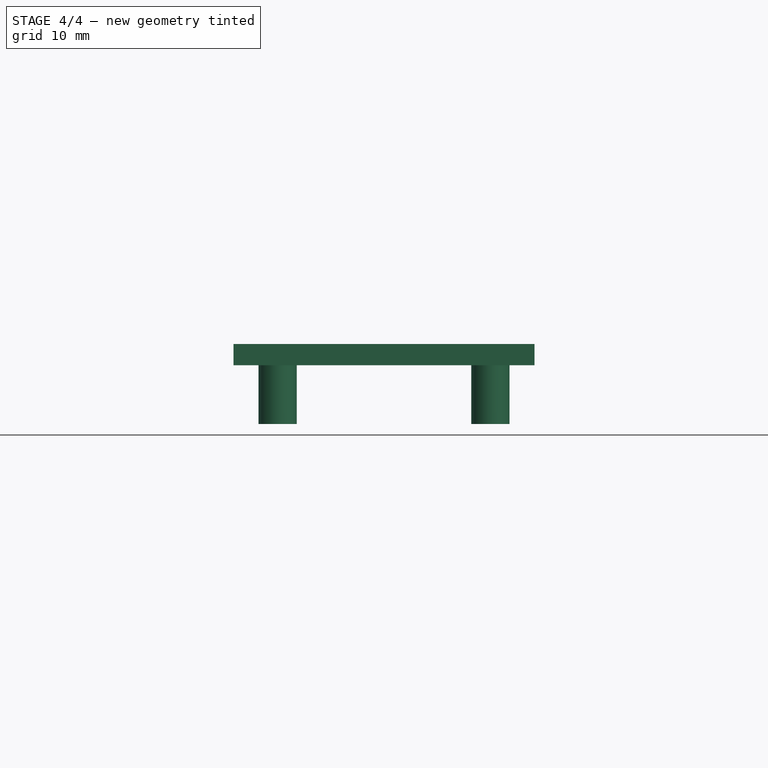
[diagram: stage 4 of 4 — front view after this stage's code; geometry added in this stage tinted green]
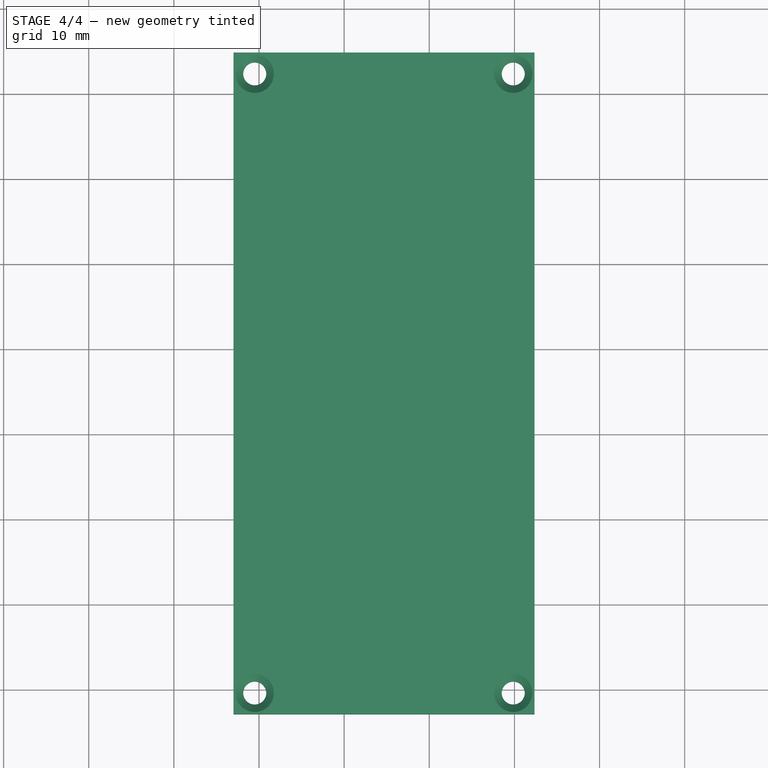
[diagram: stage 4 of 4 — top view after this stage's code; geometry added in this stage tinted green]
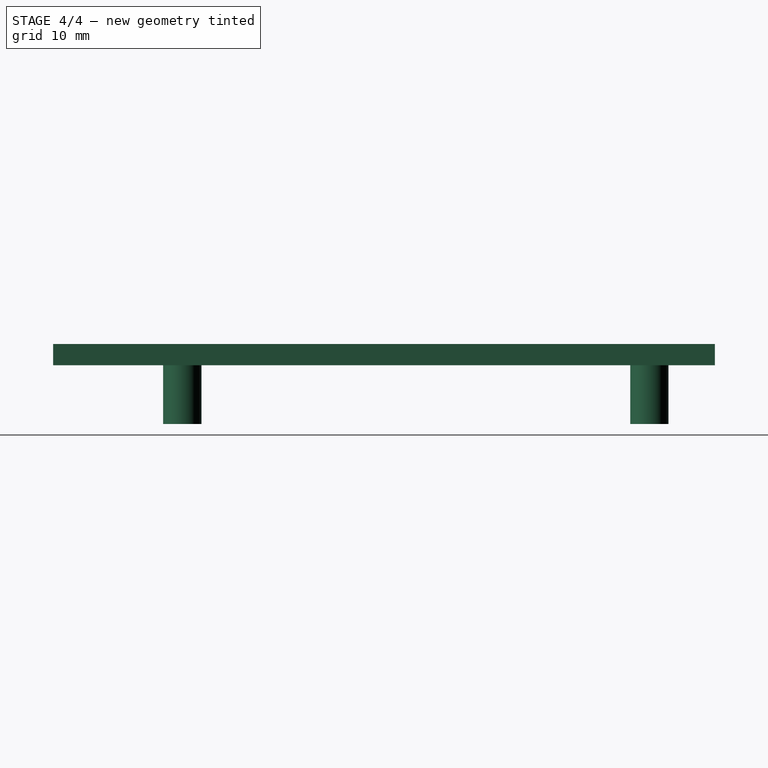
[diagram: stage 4 of 4 — right view after this stage's code; geometry added in this stage tinted green]
FEATURE [PartDesign::Body] Body  label="Base"
  Group = -> [DatumLine,CopyFeature,DatumLine001,CopyFeature001,DatumLine002,CopyFeature002,DatumLine003,CopyFeature003,Sketch001,Sketch,Pad,Sketch002,Pocket,Sketch003,Pad001,DatumLine004,CopyFeature004,DatumLine005,CopyFeature005,DatumLine006,CopyFeature006,DatumLine007,CopyFeature007,Sketch004,Pad002,Sketch005,Pad003,DatumPlane,Sketch006,Pocket001,DatumPlane001,Sketch007,Pocket002,DatumPlane002,+6 more]
  Origin = -> Origin
  Tip = -> Pocket003
FEATURE [PartDesign::Plane] CopyDatumPlane
  Length = 100
  Placement = pos=(0,0,8.5) rot=(0,0,1;0rad)
  ResizeMode = 1
  Width = 150
FEATURE [PartDesign::ShapeBinder] ShapeBinder
  Support = -> [Body]
  TraceSupport = false
FEATURE [Sketcher::SketchObject] Sketch009  label="LidOutline"
  ExternalGeometry = -> [ShapeBinder]
  FullyConstrained = true
  MapMode = 5
  Placement = pos=(0,0,8.5) rot=(0,0,1;0rad)
  Support = -> [CopyDatumPlane]
  sketch-geometry (4):
    g0: LineSegment StartX=-3 StartY=64.7328 StartZ=0 EndX=32.3624 EndY=64.7328 EndZ=0
    g1: LineSegment StartX=32.3624 StartY=64.7328 StartZ=0 EndX=32.3624 EndY=-13 EndZ=0
    g2: LineSegment StartX=32.3624 StartY=-13 StartZ=0 EndX=-3 EndY=-13 EndZ=0
    g3: LineSegment StartX=-3 StartY=-13 StartZ=0 EndX=-3 EndY=64.7328 EndZ=0
  constraints (10):
    c: Coincident(g0,g1)
    c: Coincident(g1,g2)
    c: Coincident(g2,g3)
    c: Coincident(g3,g0)
    c: Horizontal(g0)
    c: Horizontal(g2)
    c: Vertical(g1)
    c: Vertical(g3)
    c: Coincident(g0,g-3)
    c: Coincident(g1,g-4)
FEATURE [PartDesign::Pad] Pad004
  Direction = (1,1,1)
  Length = 2.5
  Length2 = 100
  Placement = pos=(0,0,8.5) rot=(0,0,1;0rad)
  Profile = -> Sketch009
  Type = 0
FEATURE [PartDesign::ShapeBinder] CopyFeature010
  TraceSupport = false
FEATURE [PartDesign::Line] DatumLine008  label="Hole_BR"
  AttacherType = Attacher::AttachEngineLine
  Length = 20
  MapMode = 19
  Placement = pos=(27.178,2.174,1.6) rot=(0,0,1;0rad)
  ResizeMode = 0
  Support = -> [CopyFeature010]
FEATURE [PartDesign::ShapeBinder] CopyFeature011
  TraceSupport = false
FEATURE [PartDesign::Line] DatumLine009  label="Hole_BL"
  AttacherType = Attacher::AttachEngineLine
  Length = 20
  MapMode = 19
  Placement = pos=(2.1844,2.174,1.6) rot=(0,0,1;0rad)
  ResizeMode = 0
  Support = -> [CopyFeature011]
FEATURE [PartDesign::ShapeBinder] CopyFeature012
  TraceSupport = false
FEATURE [PartDesign::Line] DatumLine010  label="Hole_TR"
  AttacherType = Attacher::AttachEngineLine
  Length = 20
  MapMode = 19
  Placement = pos=(27.178,57.038,1.6) rot=(0,0,1;0rad)
  ResizeMode = 0
  Support = -> [CopyFeature012]
FEATURE [PartDesign::ShapeBinder] CopyFeature013
  TraceSupport = false
FEATURE [PartDesign::Line] DatumLine011  label="Hole_TL"
  AttacherType = Attacher::AttachEngineLine
  Length = 20
  MapMode = 19
  Placement = pos=(2.1844,57.038,1.6) rot=(0,0,1;0rad)
  ResizeMode = 0
  Support = -> [CopyFeature013]
FEATURE [Sketcher::SketchObject] Sketch010  label="LidPCB_Retainer"
  ExternalGeometry = -> [DatumLine010,DatumLine011,DatumLine008,DatumLine009]
  FullyConstrained = true
  MapMode = 5
  Placement = pos=(0,0,8.5) rot=(0,0,1;0rad)
  Support = -> [CopyDatumPlane]
  sketch-geometry (4):
    g0: Circle CenterX=2.1844 CenterY=57.038 CenterZ=0 NormalX=0 NormalY=0 NormalZ=1 AngleXU=0 Radius=2.25
    g1: Circle CenterX=27.178 CenterY=57.038 CenterZ=0 NormalX=0 NormalY=0 NormalZ=1 AngleXU=0 Radius=2.25
    g2: Circle CenterX=27.178 CenterY=2.174 CenterZ=0 NormalX=0 NormalY=0 NormalZ=1 AngleXU=0 Radius=2.25
    g3: Circle CenterX=2.1844 CenterY=2.174 CenterZ=0 NormalX=0 NormalY=0 NormalZ=1 AngleXU=0 Radius=2.25
  constraints (8):
    c: Coincident(g0,g-4)
    c: Coincident(g1,g-3)
    c: Coincident(g2,g-5)
    c: Coincident(g3,g-6)
    c: Radius(g2) = 2.25
    c: Radius(g3) = 2.25
    c: Radius(g1) = 2.25
    c: Radius(g0) = 2.25
FEATURE [PartDesign::Pad] Pad005
  BaseFeature = -> Pad004
  Direction = (1,1,1)
  Length = 6.9
  Length2 = 100
  Placement = pos=(0,0,8.5) rot=(0,0,1;0rad)
  Profile = -> Sketch010
  Reversed = true
  Type = 0
FEATURE [PartDesign::Plane] DatumPlane005  label="LidTop"
  Length = 71.7113
  MapMode = 5
  Placement = pos=(0,0,11) rot=(0,0,1;0rad)
  ResizeMode = 0
  Support = -> [Pad005]
  Width = 104.082
FEATURE [PartDesign::Line] DatumLine012
  AttacherType = Attacher::AttachEngineLine
  Length = 20
  MapMode = 19
  Placement = pos=(29.8624,-10.5,8.5) rot=(0,0,1;3.14159rad)
  ResizeMode = 0
  Support = -> [ShapeBinder]
FEATURE [PartDesign::Line] DatumLine013
  AttacherType = Attacher::AttachEngineLine
  Length = 20
  MapMode = 19
  Placement = pos=(-0.5,-10.5,8.5) rot=(0,0,1;1.5708rad)
  ResizeMode = 0
  Support = -> [ShapeBinder]
FEATURE [PartDesign::Line] DatumLine014
  AttacherType = Attacher::AttachEngineLine
  Length = 20
  MapMode = 19
  Placement = pos=(29.8624,62.2328,8.5) rot=(0,0,1;0rad)
  ResizeMode = 0
  Support = -> [ShapeBinder]
FEATURE [PartDesign::Line] DatumLine015
  AttacherType = Attacher::AttachEngineLine
  Length = 20
  MapMode = 19
  Placement = pos=(-0.5,62.2328,8.5) rot=(0,0,1;0rad)
  ResizeMode = 0
  Support = -> [ShapeBinder]
FEATURE [Sketcher::SketchObject] Sketch011  label="LidHoles"
  ExternalGeometry = -> [DatumLine013,DatumLine012,DatumLine015,DatumLine014]
  FullyConstrained = true
  MapMode = 5
  Placement = pos=(0,0,11) rot=(0,0,1;0rad)
  Support = -> [DatumPlane005]
  sketch-geometry (4):
    g0: Circle CenterX=-0.5 CenterY=62.2328 CenterZ=0 NormalX=0 NormalY=0 NormalZ=1 AngleXU=0 Radius=1
    g1: Circle CenterX=29.8624 CenterY=62.2328 CenterZ=0 NormalX=0 NormalY=0 NormalZ=1 AngleXU=0 Radius=1
    g2: Circle CenterX=29.8624 CenterY=-10.5 CenterZ=0 NormalX=0 NormalY=0 NormalZ=1 AngleXU=0 Radius=1
    g3: Circle CenterX=-0.5 CenterY=-10.5 CenterZ=0 NormalX=0 NormalY=0 NormalZ=1 AngleXU=0 Radius=1
  constraints (8):
    c: Coincident(g0,g-5)
    c: Coincident(g1,g-6)
    c: Coincident(g2,g-4)
    c: Coincident(g3,g-3)
    c: Radius(g0) = 1
    c: Radius(g1) = 1
    c: Radius(g2) = 1
    c: Radius(g3) = 1
FEATURE [PartDesign::Hole] Hole
  BaseFeature = -> Pad005
  Depth = 2.5
  DepthType = 1
  Diameter = 2.7
  DrillForDepth = false
  DrillPoint = 1
  DrillPointAngle = 118
  HoleCutCountersinkAngle = 90
  HoleCutCustomValues = false
  HoleCutDepth = 0
  HoleCutDiameter = 4.5
  HoleCutType = 2
  ModelActualThread = false
  Placement = pos=(0,0,8.5) rot=(0,0,1;0rad)
  Profile = -> Sketch011
  Tapered = false
  TaperedAngle = 90
  ThreadAngle = 0
  ThreadClass = 0
  ThreadCutOffInner = 0
  ThreadCutOffOuter = 0
  ThreadDirection = 0
  ThreadFit = 1
  ThreadPitch = 0
  ThreadSize = 8
  ThreadType = 1
  Threaded = false
FEATURE [PartDesign::Body] Body001  label="Lid"
  Group = -> [CopyDatumPlane,Sketch009,ShapeBinder,Pad004,DatumLine008,CopyFeature010,DatumLine009,CopyFeature011,DatumLine010,CopyFeature012,DatumLine011,CopyFeature013,Sketch010,Pad005,DatumPlane005,DatumLine012,DatumLine013,DatumLine014,DatumLine015,Sketch011,Hole]
  Origin = -> Origin001
  Tip = -> Hole
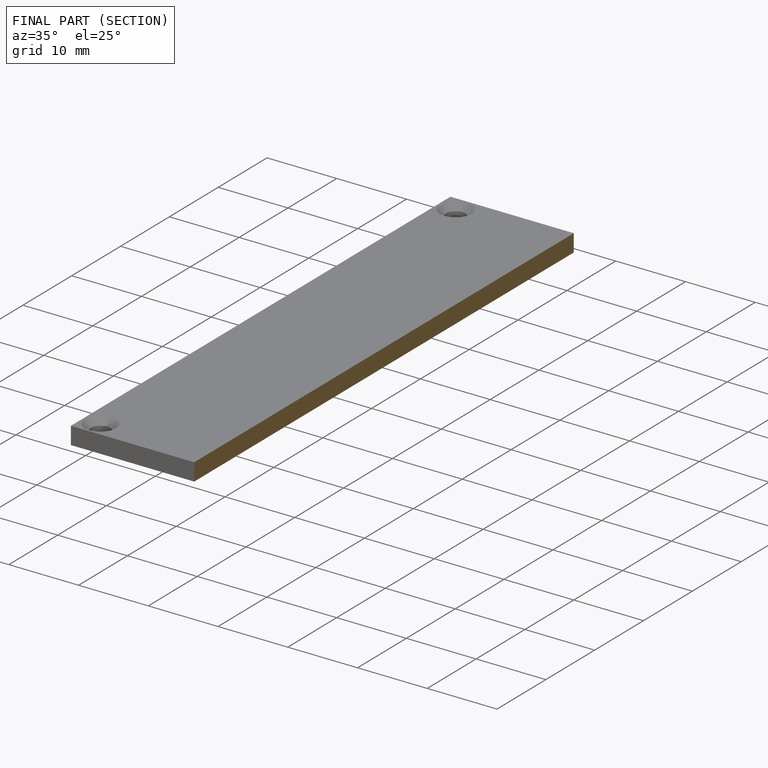
[diagram: finished part — half-section view (interior)]
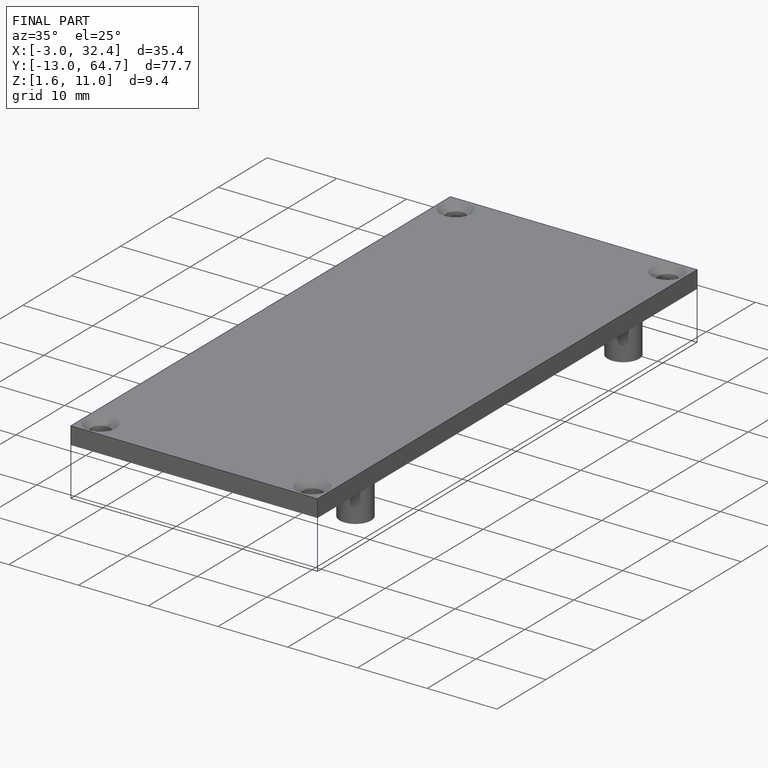
[diagram: finished part — iso view with bounding-box wireframe]
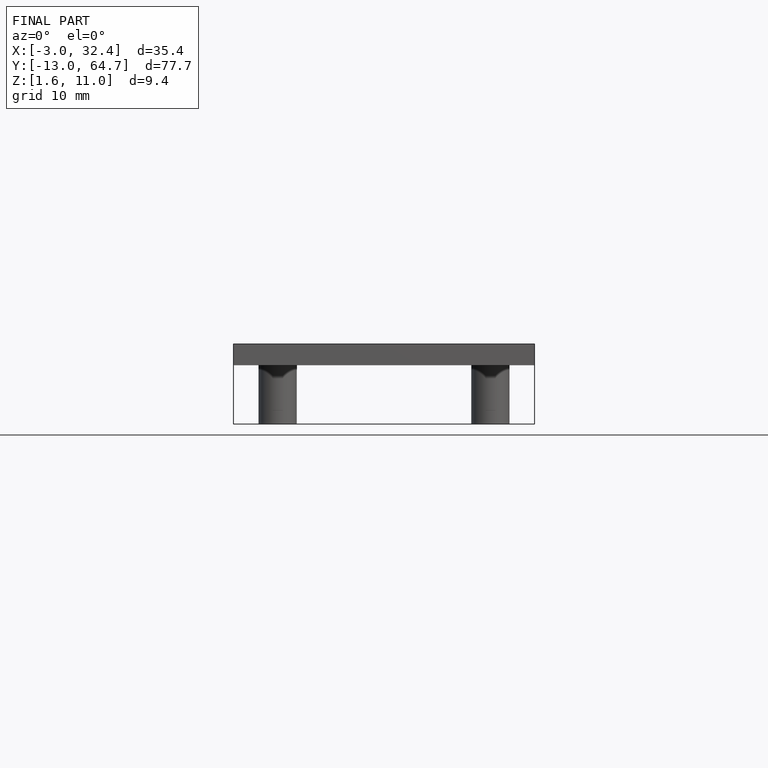
[diagram: finished part — front view with bounding-box wireframe]
